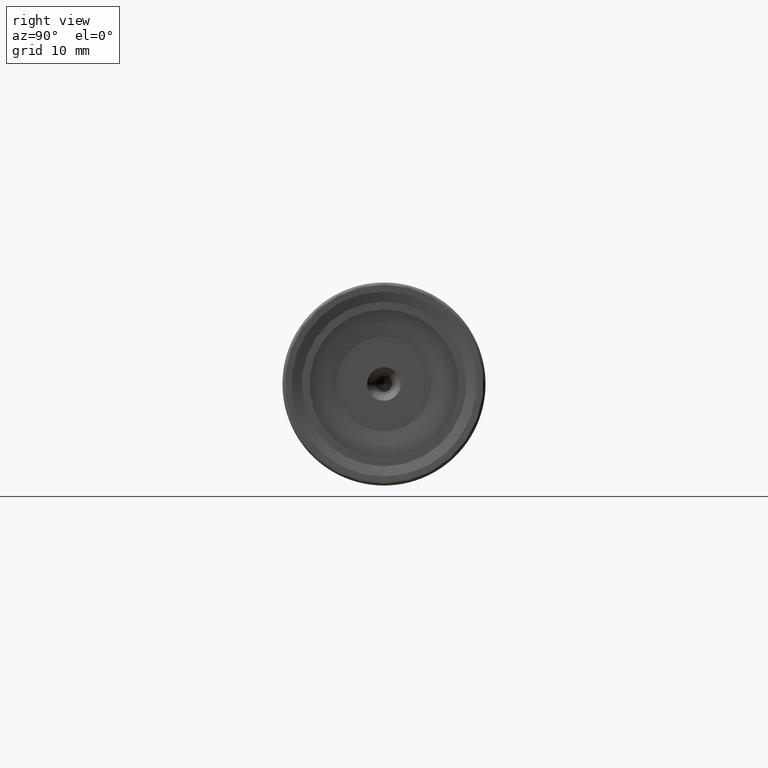
[diagram: clean part render]
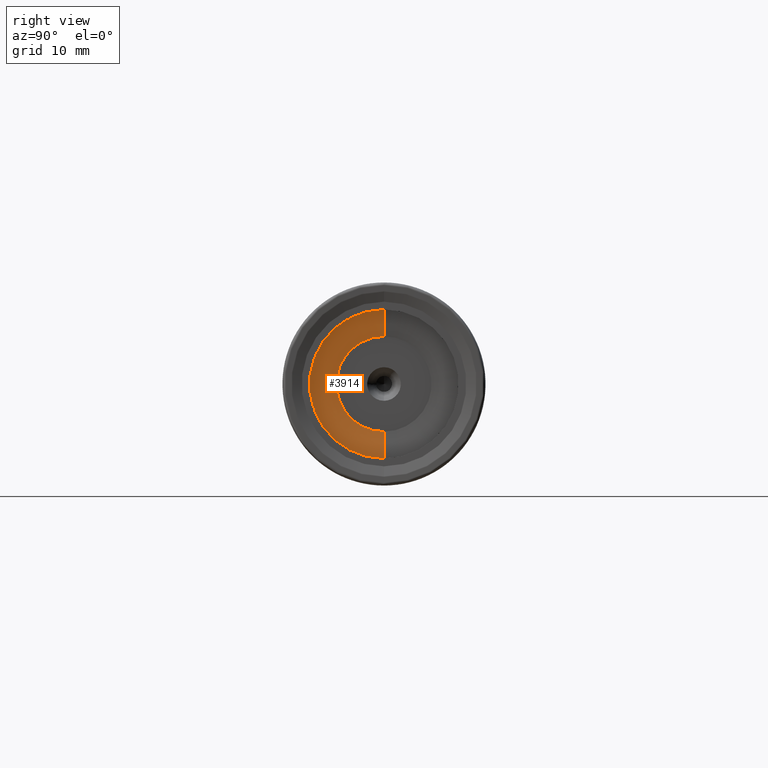
[diagram: same view with one face highlighted and labeled with its STEP entity id]
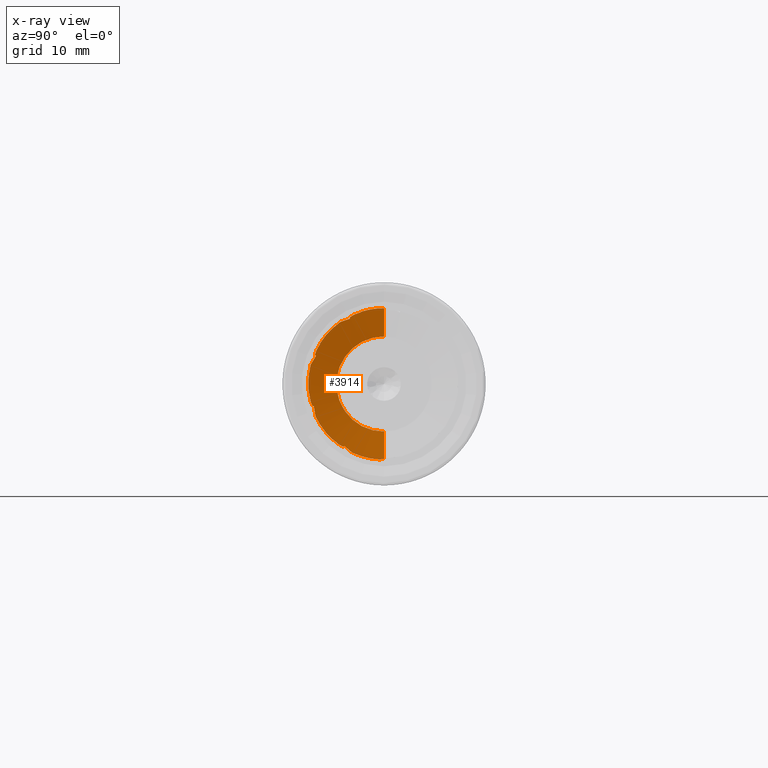
[diagram: x-ray of the same camera — body ghosted, the highlighted face saturated]
A machine part, right view. The second image highlights one B-rep face of the part: STEP entity #3914.
The next image is the same camera in x-ray: the body ghosted, the highlighted face saturated — about 0% of this face is hidden behind the body in this view.
In plain terms, the highlighted conical surface has half-angle 82.771 deg.
Its self-contained STEP definition (entity closure, byte-faithful):
#394 = ORIENTED_EDGE ( 'NONE', *, *, #3701, .F. ) ;
#396 = ORIENTED_EDGE ( 'NONE', *, *, #3816, .T. ) ;
#398 = ORIENTED_EDGE ( 'NONE', *, *, #4178, .T. ) ;
#400 = ORIENTED_EDGE ( 'NONE', *, *, #4321, .F. ) ;
#402 = ORIENTED_EDGE ( 'NONE', *, *, #4252, .F. ) ;
#404 = ORIENTED_EDGE ( 'NONE', *, *, #4466, .T. ) ;
#406 = ORIENTED_EDGE ( 'NONE', *, *, #3793, .F. ) ;
#408 = ORIENTED_EDGE ( 'NONE', *, *, #4454, .F. ) ;
#410 = ORIENTED_EDGE ( 'NONE', *, *, #4205, .T. ) ;
#412 = ORIENTED_EDGE ( 'NONE', *, *, #4451, .F. ) ;
#414 = ORIENTED_EDGE ( 'NONE', *, *, #4480, .F. ) ;
#416 = ORIENTED_EDGE ( 'NONE', *, *, #4285, .T. ) ;
#418 = ORIENTED_EDGE ( 'NONE', *, *, #4344, .F. ) ;
#420 = ORIENTED_EDGE ( 'NONE', *, *, #3808, .F. ) ;
#422 = ORIENTED_EDGE ( 'NONE', *, *, #4202, .T. ) ;
#424 = ORIENTED_EDGE ( 'NONE', *, *, #3801, .F. ) ;
#426 = ORIENTED_EDGE ( 'NONE', *, *, #3702, .F. ) ;
#428 = ORIENTED_EDGE ( 'NONE', *, *, #3831, .T. ) ;
#430 = ORIENTED_EDGE ( 'NONE', *, *, #4468, .F. ) ;
#432 = ORIENTED_EDGE ( 'NONE', *, *, #4476, .F. ) ;
#434 = ORIENTED_EDGE ( 'NONE', *, *, #4143, .T. ) ;
#436 = ORIENTED_EDGE ( 'NONE', *, *, #4333, .F. ) ;
#438 = ORIENTED_EDGE ( 'NONE', *, *, #4286, .F. ) ;
#440 = ORIENTED_EDGE ( 'NONE', *, *, #4446, .T. ) ;
#442 = ORIENTED_EDGE ( 'NONE', *, *, #4447, .F. ) ;
#444 = ORIENTED_EDGE ( 'NONE', *, *, #4266, .F. ) ;
#446 = ORIENTED_EDGE ( 'NONE', *, *, #4227, .T. ) ;
#448 = ORIENTED_EDGE ( 'NONE', *, *, #4370, .F. ) ;
#450 = ORIENTED_EDGE ( 'NONE', *, *, #4369, .F. ) ;
#452 = ORIENTED_EDGE ( 'NONE', *, *, #4378, .F. ) ;
#571 = VERTEX_POINT ( 'NONE', #2256 ) ;
#601 = VERTEX_POINT ( 'NONE', #2271 ) ;
#611 = VERTEX_POINT ( 'NONE', #2276 ) ;
#701 = VERTEX_POINT ( 'NONE', #2321 ) ;
#709 = VERTEX_POINT ( 'NONE', #2325 ) ;
#719 = VERTEX_POINT ( 'NONE', #2330 ) ;
#754 = CARTESIAN_POINT ( 'NONE',  ( -0.8408502897859919700, -11.80428433555182700, -1.567950288884417500 ) ) ;
#759 = CARTESIAN_POINT ( 'NONE',  ( -0.8386959843635084500, -11.82099465300887100, -1.571126688327905400 ) ) ;
#760 = CARTESIAN_POINT ( 'NONE',  ( -0.8365416649249308700, -11.83770496844240900, -1.574303088910470800 ) ) ;
#768 = CARTESIAN_POINT ( 'NONE',  ( -0.8365416649249314300, -11.54318553436696600, 3.060156344832777100 ) ) ;
#779 = CARTESIAN_POINT ( 'NONE',  ( -0.8556041347244167600, -11.26501394663457300, 3.523009539136814800 ) ) ;
#785 = CARTESIAN_POINT ( 'NONE',  ( -0.8702469324916530800, -10.98763141287724400, 3.986470073321628100 ) ) ;
#786 = CARTESIAN_POINT ( 'NONE',  ( -0.8800728087807242500, -10.71094405707705900, 4.450493909454381800 ) ) ;
#813 = LINE ( 'NONE', #814, #1303 ) ;
#814 = CARTESIAN_POINT ( 'NONE',  ( -1.399999999999999900, 9.184850993605147900E-016, 7.500000000000000000 ) ) ;
#815 = DIRECTION ( 'NONE',  ( 0.1258414835689837000, 1.214911300582200800E-016, 0.9920503621354902500 ) ) ;
#861 = CARTESIAN_POINT ( 'NONE',  ( -0.8424511453978544800, -11.57259129098971700, -2.752149540198184100 ) ) ;
#862 = CARTESIAN_POINT ( 'NONE',  ( -0.8477636352723098000, -11.46923423779513800, -3.005744197847271900 ) ) ;
#866 = CARTESIAN_POINT ( 'NONE',  ( -0.8519066745888120900, -11.36584842702142200, -3.259345244553054000 ) ) ;
#867 = CARTESIAN_POINT ( 'NONE',  ( -0.8548505829995852700, -11.26243312880877500, -3.512952842468108500 ) ) ;
#1167 = DIRECTION ( 'NONE',  ( 0.0000000000000000000, 0.0000000000000000000, -1.000000000000000000 ) ) ;
#1168 = CARTESIAN_POINT ( 'NONE',  ( -1.399999999999999900, 0.0000000000000000000, 0.0000000000000000000 ) ) ;
#1169 = FACE_OUTER_BOUND ( 'NONE', #2698, .T. ) ;
#1170 = DIRECTION ( 'NONE',  ( 1.000000000000000000, -0.0000000000000000000, -0.0000000000000000000 ) ) ;
#1274 = VERTEX_POINT ( 'NONE', #2351 ) ;
#1303 = VECTOR ( 'NONE', #815, 1000.000000000000100 ) ;
#1445 = CARTESIAN_POINT ( 'NONE',  ( -0.8365416649249314300, 0.0000000000000000000, 0.0000000000000000000 ) ) ;
#1446 = DIRECTION ( 'NONE',  ( 1.000000000000000000, -0.0000000000000000000, -0.0000000000000000000 ) ) ;
#1447 = DIRECTION ( 'NONE',  ( 0.0000000000000000000, 0.0000000000000000000, 1.000000000000000000 ) ) ;
#1647 = CARTESIAN_POINT ( 'NONE',  ( -0.8365416649249314300, 0.0000000000000000000, 0.0000000000000000000 ) ) ;
#1648 = DIRECTION ( 'NONE',  ( 1.000000000000000000, -0.0000000000000000000, -0.0000000000000000000 ) ) ;
#1649 = DIRECTION ( 'NONE',  ( 0.0000000000000000000, 0.0000000000000000000, 1.000000000000000000 ) ) ;
#1750 = CARTESIAN_POINT ( 'NONE',  ( -0.8365416649249314300, 0.0000000000000000000, 0.0000000000000000000 ) ) ;
#1751 = DIRECTION ( 'NONE',  ( 1.000000000000000000, -0.0000000000000000000, -0.0000000000000000000 ) ) ;
#1752 = DIRECTION ( 'NONE',  ( 0.0000000000000000000, 0.0000000000000000000, 1.000000000000000000 ) ) ;
#1765 = CARTESIAN_POINT ( 'NONE',  ( -0.8365416649249314300, 0.0000000000000000000, 0.0000000000000000000 ) ) ;
#1766 = DIRECTION ( 'NONE',  ( 1.000000000000000000, -0.0000000000000000000, -0.0000000000000000000 ) ) ;
#1767 = DIRECTION ( 'NONE',  ( 0.0000000000000000000, 0.0000000000000000000, 1.000000000000000000 ) ) ;
#1873 = CARTESIAN_POINT ( 'NONE',  ( -0.8365416649249314300, 0.0000000000000000000, 0.0000000000000000000 ) ) ;
#1874 = DIRECTION ( 'NONE',  ( 1.000000000000000000, -0.0000000000000000000, -0.0000000000000000000 ) ) ;
#1875 = DIRECTION ( 'NONE',  ( 0.0000000000000000000, 0.0000000000000000000, 1.000000000000000000 ) ) ;
#1963 = VERTEX_POINT ( 'NONE', #2359 ) ;
#1964 = VERTEX_POINT ( 'NONE', #2360 ) ;
#1967 = VERTEX_POINT ( 'NONE', #2363 ) ;
#1976 = CARTESIAN_POINT ( 'NONE',  ( -0.8477636356011210000, -4.951691828586384700, 10.77304878697902900 ) ) ;
#1977 = CARTESIAN_POINT ( 'NONE',  ( -0.8424511453978536000, -4.719897593200675700, 10.91887187348595100 ) ) ;
#1982 = CARTESIAN_POINT ( 'NONE',  ( -0.8519066747725505500, -5.183487348037292700, 10.62719627928330400 ) ) ;
#1983 = CARTESIAN_POINT ( 'NONE',  ( -0.8548505829995851600, -5.415284184142144900, 10.48131360370798900 ) ) ;
#1984 = CARTESIAN_POINT ( 'NONE',  ( -0.8716663574693769300, -11.13133219215556100, -3.488041535889471900 ) ) ;
#1985 = CARTESIAN_POINT ( 'NONE',  ( -0.8800728087807302400, -11.06578151746479800, -3.475585999462436100 ) ) ;
#1989 = CARTESIAN_POINT ( 'NONE',  ( -0.8632589327120321300, -11.19688272696080700, -3.500497151542556000 ) ) ;
#1990 = CARTESIAN_POINT ( 'NONE',  ( -0.8548505829995852700, -11.26243312880877500, -3.512952842468108500 ) ) ;
#2015 = CARTESIAN_POINT ( 'NONE',  ( -0.8556039821939199800, -10.89404754050852900, -4.542233775169762600 ) ) ;
#2016 = CARTESIAN_POINT ( 'NONE',  ( -0.8365416649249314300, -10.80962371663590800, -5.075600874810944200 ) ) ;
#2021 = CARTESIAN_POINT ( 'NONE',  ( -0.8702468518466736100, -10.97946684797748600, -4.008904461798660900 ) ) ;
#2022 = CARTESIAN_POINT ( 'NONE',  ( -0.8800728087807302400, -11.06578151746479800, -3.475585999462436100 ) ) ;
#2031 = CARTESIAN_POINT ( 'NONE',  ( -0.8452092490884226500, -10.43475509660756600, 5.679751512238759400 ) ) ;
#2032 = CARTESIAN_POINT ( 'NONE',  ( -0.8424511453978536000, -10.63416687539364600, 5.330449431913290700 ) ) ;
#2037 = CARTESIAN_POINT ( 'NONE',  ( -0.8453948181580719400, -10.23524046230496300, 6.029008448121373000 ) ) ;
#2038 = CARTESIAN_POINT ( 'NONE',  ( -0.8430045810115631700, -10.03562284168035700, 6.378220182149135600 ) ) ;
#2065 = CARTESIAN_POINT ( 'NONE',  ( -0.8424511453978536000, -4.719897593200675700, 10.91887187348595100 ) ) ;
#2081 = CARTESIAN_POINT ( 'NONE',  ( -0.8548505829995850500, -6.369441753771425000, -9.930430474033210300 ) ) ;
#2156 = AXIS2_PLACEMENT_3D ( 'NONE', #1168, #1170, #1167 ) ;
#2157 = CONICAL_SURFACE ( 'NONE', #2156, 7.500000000000000000, 1.444620314489962100 ) ;
#2256 = CARTESIAN_POINT ( 'NONE',  ( -0.8365416649249314300, -11.54318553436696600, 3.060156344832777100 ) ) ;
#2271 = CARTESIAN_POINT ( 'NONE',  ( -0.8365416649249322000, -0.5052100079786555600, -11.93123849327794500 ) ) ;
#2276 = CARTESIAN_POINT ( 'NONE',  ( -0.8365416649249314300, -6.875562552332457500, 9.764032400837406200 ) ) ;
#2321 = CARTESIAN_POINT ( 'NONE',  ( -0.8365416649249314300, -10.80962371663590800, -5.075600874810944200 ) ) ;
#2325 = CARTESIAN_POINT ( 'NONE',  ( -0.8365416649249314300, -5.018118826295346200, -10.83642803606517400 ) ) ;
#2330 = CARTESIAN_POINT ( 'NONE',  ( -0.8365416649249307600, -3.605981783078858500, 11.38448876830850800 ) ) ;
#2351 = CARTESIAN_POINT ( 'NONE',  ( -0.8430045810115628400, -8.023988304009794300, -8.775592869404617200 ) ) ;
#2359 = CARTESIAN_POINT ( 'NONE',  ( -0.8800728087807238000, -5.344336833499422600, 10.29413825640720100 ) ) ;
#2360 = CARTESIAN_POINT ( 'NONE',  ( -0.8548505829995852700, -11.26243312880877500, -3.512952842468108500 ) ) ;
#2363 = CARTESIAN_POINT ( 'NONE',  ( -0.8800728087807238000, -6.242816823368128700, -9.775400592395016000 ) ) ;
#2371 = CARTESIAN_POINT ( 'NONE',  ( -0.8365416649249306500, -8.056265590914314600, -8.815116213884488500 ) ) ;
#2380 = CARTESIAN_POINT ( 'NONE',  ( -0.8365416649249314300, 1.462464619686716000E-015, 11.94192987484180100 ) ) ;
#2391 = CARTESIAN_POINT ( 'NONE',  ( -0.8365416649249308700, -11.83770496844240900, -1.574303088910470800 ) ) ;
#2422 = CARTESIAN_POINT ( 'NONE',  ( -0.8365416649249310900, -10.08015062980011200, 6.403143947794673900 ) ) ;
#2447 = CARTESIAN_POINT ( 'NONE',  ( -0.8548505829995851600, -5.415284184142144900, 10.48131360370798900 ) ) ;
#2451 = CARTESIAN_POINT ( 'NONE',  ( -0.8424511453978536000, -10.63416687539364600, 5.330449431913290700 ) ) ;
#2455 = CARTESIAN_POINT ( 'NONE',  ( -0.8446540480794894100, -7.550806746178074500E-018, -11.87797725430670000 ) ) ;
#2468 = CARTESIAN_POINT ( 'NONE',  ( -0.8430045810115631700, -3.587892206169022800, 11.33677414564401800 ) ) ;
#2469 = CARTESIAN_POINT ( 'NONE',  ( -0.8800728087807242500, -10.71094405707705900, 4.450493909454381800 ) ) ;
#2471 = CARTESIAN_POINT ( 'NONE',  ( -1.399999999999999900, 1.190474859524439800E-015, 7.500000000000000000 ) ) ;
#2483 = CARTESIAN_POINT ( 'NONE',  ( -0.8800728087807302400, -11.06578151746479800, -3.475585999462436100 ) ) ;
#2496 = CARTESIAN_POINT ( 'NONE',  ( -0.8424511453978544800, -11.57259129098971700, -2.752149540198184100 ) ) ;
#2500 = VERTEX_POINT ( 'NONE', #2371 ) ;
#2512 = VERTEX_POINT ( 'NONE', #2380 ) ;
#2523 = VERTEX_POINT ( 'NONE', #2391 ) ;
#2554 = VERTEX_POINT ( 'NONE', #2422 ) ;
#2698 = EDGE_LOOP ( 'NONE', ( #394, #396, #398, #400, #402, #404, #406, #408, #410, #412, #414, #416, #418, #420, #422, #424, #426, #428, #430, #432, #434, #436, #438, #440, #442, #444, #446, #448, #450, #452 ) ) ;
#2863 = VERTEX_POINT ( 'NONE', #2447 ) ;
#2867 = VERTEX_POINT ( 'NONE', #2451 ) ;
#2871 = VERTEX_POINT ( 'NONE', #2455 ) ;
#2897 = VERTEX_POINT ( 'NONE', #2468 ) ;
#2898 = VERTEX_POINT ( 'NONE', #2469 ) ;
#2900 = VERTEX_POINT ( 'NONE', #2471 ) ;
#2950 = AXIS2_PLACEMENT_3D ( 'NONE', #6729, #6730, #6731 ) ;
#2966 = CIRCLE ( 'NONE', #2950, 7.500000000000000000 ) ;
#3022 = CARTESIAN_POINT ( 'NONE',  ( -0.8452092538668729600, -4.342611605246450100, 11.05827361197483300 ) ) ;
#3029 = CARTESIAN_POINT ( 'NONE',  ( -0.8424511453978536000, -4.719897593200675700, 10.91887187348595100 ) ) ;
#3033 = CARTESIAN_POINT ( 'NONE',  ( -0.8453948140152147700, -3.965276496888238400, 11.19757441179983100 ) ) ;
#3034 = CARTESIAN_POINT ( 'NONE',  ( -0.8430045810115631700, -3.587892206169022800, 11.33677414564401800 ) ) ;
#3078 = CARTESIAN_POINT ( 'NONE',  ( -0.8556041140388648300, -5.425635809082961300, -10.48210927055406700 ) ) ;
#3083 = CARTESIAN_POINT ( 'NONE',  ( -0.8365416649249314300, -5.018118826295346200, -10.83642803606517400 ) ) ;
#3087 = CARTESIAN_POINT ( 'NONE',  ( -0.8702469215442105700, -5.833888351475566800, -10.12846173244650800 ) ) ;
#3088 = CARTESIAN_POINT ( 'NONE',  ( -0.8800728087807238000, -6.242816823368128700, -9.775400592395016000 ) ) ;
#3183 = CARTESIAN_POINT ( 'NONE',  ( -0.8424511453978536000, -7.096071626505841200, -9.546987155715823900 ) ) ;
#3188 = CARTESIAN_POINT ( 'NONE',  ( -0.8424511453978536000, -10.63416687539364600, 5.330449431913290700 ) ) ;
#3189 = CARTESIAN_POINT ( 'NONE',  ( -0.8477636393760863400, -10.71799834771416500, 5.069747819063485000 ) ) ;
#3193 = CARTESIAN_POINT ( 'NONE',  ( -0.8452092509661990300, -7.405439741986480600, -9.289949045224581400 ) ) ;
#3194 = CARTESIAN_POINT ( 'NONE',  ( -0.8519066768819872900, -10.80181183301449500, 4.809023026556639400 ) ) ;
#3195 = CARTESIAN_POINT ( 'NONE',  ( -0.8548505829995851600, -10.88560687487465000, 4.548274466209791800 ) ) ;
#3198 = CARTESIAN_POINT ( 'NONE',  ( -0.8453948165300594300, -7.714745327576450200, -9.032817655869132900 ) ) ;
#3199 = CARTESIAN_POINT ( 'NONE',  ( -0.8430045810115628400, -8.023988304009794300, -8.775592869404617200 ) ) ;
#3384 = CARTESIAN_POINT ( 'NONE',  ( -0.8408502897859917400, -3.593922064361940300, 11.35267902207489500 ) ) ;
#3385 = CARTESIAN_POINT ( 'NONE',  ( -0.8430045810115631700, -3.587892206169022800, 11.33677414564401800 ) ) ;
#3392 = CARTESIAN_POINT ( 'NONE',  ( -0.8386959843635084500, -3.599951923335202000, 11.36858389628698300 ) ) ;
#3393 = CARTESIAN_POINT ( 'NONE',  ( -0.8365416649249307600, -3.605981783078858500, 11.38448876830850800 ) ) ;
#3433 = CARTESIAN_POINT ( 'NONE',  ( -0.8430045810115628400, -8.023988304009794300, -8.775592869404617200 ) ) ;
#3443 = CARTESIAN_POINT ( 'NONE',  ( -0.8408502897859916300, -8.034747401946527000, -8.788767317996336800 ) ) ;
#3457 = CARTESIAN_POINT ( 'NONE',  ( -0.8386959843635082300, -8.045506497571558700, -8.801941766154461900 ) ) ;
#3458 = CARTESIAN_POINT ( 'NONE',  ( -0.8365416649249306500, -8.056265590914314600, -8.815116213884488500 ) ) ;
#3508 = CARTESIAN_POINT ( 'NONE',  ( -0.8800728087807242500, -10.71094405707705900, 4.450493909454381800 ) ) ;
#3509 = CARTESIAN_POINT ( 'NONE',  ( -0.8716663574693763700, -10.76916505165391400, 4.483087576486203900 ) ) ;
#3522 = CARTESIAN_POINT ( 'NONE',  ( -0.8632589327120333600, -10.82738598999777000, 4.515681092910670100 ) ) ;
#3523 = CARTESIAN_POINT ( 'NONE',  ( -0.8548505829995851600, -10.88560687487465000, 4.548274466209791800 ) ) ;
#3547 = VERTEX_POINT ( 'NONE', #2483 ) ;
#3560 = VERTEX_POINT ( 'NONE', #2496 ) ;
#3566 = VERTEX_POINT ( 'NONE', #6657 ) ;
#3578 = VERTEX_POINT ( 'NONE', #6669 ) ;
#3583 = VERTEX_POINT ( 'NONE', #6674 ) ;
#3589 = B_SPLINE_CURVE_WITH_KNOTS ( 'NONE', 3,
 ( #5254, #5255, #5260, #5261 ),
 .UNSPECIFIED., .F., .F.,
 ( 4, 4 ),
 ( 0.0002574579374148931600, 0.0003088941823510664200 ),
 .UNSPECIFIED. ) ;
#3591 = B_SPLINE_CURVE_WITH_KNOTS ( 'NONE', 3,
 ( #3188, #3189, #3194, #3195 ),
 .UNSPECIFIED., .F., .F.,
 ( 4, 4 ),
 ( 0.0003105390936898961500, 0.001132228155330301700 ),
 .UNSPECIFIED. ) ;
#3596 = B_SPLINE_CURVE_WITH_KNOTS ( 'NONE', 3,
 ( #3385, #3384, #3392, #3393 ),
 .UNSPECIFIED., .F., .F.,
 ( 4, 4 ),
 ( 0.0004839834894248063000, 0.0005354197343606880100 ),
 .UNSPECIFIED. ) ;
#3605 = B_SPLINE_CURVE_WITH_KNOTS ( 'NONE', 3,
 ( #5249, #5250, #5256, #5257 ),
 .UNSPECIFIED., .F., .F.,
 ( 4, 4 ),
 ( 0.002094416310000768500, 0.002600298962219417400 ),
 .UNSPECIFIED. ) ;
#3608 = B_SPLINE_CURVE_WITH_KNOTS ( 'NONE', 3,
 ( #3183, #3193, #3198, #3199 ),
 .UNSPECIFIED., .F., .F.,
 ( 4, 4 ),
 ( 0.001102895927069756000, 0.002309567056425247100 ),
 .UNSPECIFIED. ) ;
#3618 = B_SPLINE_CURVE_WITH_KNOTS ( 'NONE', 3,
 ( #3508, #3509, #3522, #3523 ),
 .UNSPECIFIED., .F., .F.,
 ( 4, 4 ),
 ( 4.438866518376486300E-005, 0.0002461417267331955000 ),
 .UNSPECIFIED. ) ;
#3639 = B_SPLINE_CURVE_WITH_KNOTS ( 'NONE', 3,
 ( #3433, #3443, #3457, #3458 ),
 .UNSPECIFIED., .F., .F.,
 ( 4, 4 ),
 ( 0.0002829085229662050200, 0.0003343447679023791400 ),
 .UNSPECIFIED. ) ;
#3663 = VERTEX_POINT ( 'NONE', #6692 ) ;
#3689 = VERTEX_POINT ( 'NONE', #6718 ) ;
#3695 = VERTEX_POINT ( 'NONE', #6724 ) ;
#3701 = EDGE_CURVE ( 'NONE', #2900, #3578, #2966, .T. ) ;
#3702 = EDGE_CURVE ( 'NONE', #3560, #3583, #6970, .T. ) ;
#3793 = EDGE_CURVE ( 'NONE', #1963, #2863, #7020, .T. ) ;
#3801 = EDGE_CURVE ( 'NONE', #3583, #2523, #7009, .T. ) ;
#3808 = EDGE_CURVE ( 'NONE', #571, #2898, #7003, .T. ) ;
#3816 = EDGE_CURVE ( 'NONE', #2900, #2512, #813, .T. ) ;
#3831 = EDGE_CURVE ( 'NONE', #3560, #1964, #7011, .T. ) ;
#3914 = ADVANCED_FACE ( 'NONE', ( #1169 ), #2157, .F. ) ;
#4143 = EDGE_CURVE ( 'NONE', #701, #2500, #6403, .T. ) ;
#4178 = EDGE_CURVE ( 'NONE', #2512, #719, #6439, .T. ) ;
#4202 = EDGE_CURVE ( 'NONE', #571, #2523, #6471, .T. ) ;
#4205 = EDGE_CURVE ( 'NONE', #611, #2554, #6475, .T. ) ;
#4227 = EDGE_CURVE ( 'NONE', #709, #601, #6488, .T. ) ;
#4252 = EDGE_CURVE ( 'NONE', #6631, #2897, #6249, .T. ) ;
#4266 = EDGE_CURVE ( 'NONE', #709, #1967, #6245, .T. ) ;
#4285 = EDGE_CURVE ( 'NONE', #2867, #3695, #3591, .T. ) ;
#4286 = EDGE_CURVE ( 'NONE', #3663, #1274, #3608, .T. ) ;
#4321 = EDGE_CURVE ( 'NONE', #2897, #719, #3596, .T. ) ;
#4333 = EDGE_CURVE ( 'NONE', #1274, #2500, #3639, .T. ) ;
#4344 = EDGE_CURVE ( 'NONE', #2898, #3695, #3618, .T. ) ;
#4369 = EDGE_CURVE ( 'NONE', #2871, #3689, #3605, .T. ) ;
#4370 = EDGE_CURVE ( 'NONE', #3689, #601, #3589, .T. ) ;
#4378 = EDGE_CURVE ( 'NONE', #3578, #2871, #5295, .T. ) ;
#4446 = EDGE_CURVE ( 'NONE', #3663, #6648, #6222, .T. ) ;
#4447 = EDGE_CURVE ( 'NONE', #1967, #6648, #6213, .T. ) ;
#4451 = EDGE_CURVE ( 'NONE', #3566, #2554, #6212, .T. ) ;
#4454 = EDGE_CURVE ( 'NONE', #611, #1963, #6191, .T. ) ;
#4466 = EDGE_CURVE ( 'NONE', #6631, #2863, #6218, .T. ) ;
#4468 = EDGE_CURVE ( 'NONE', #3547, #1964, #6201, .T. ) ;
#4476 = EDGE_CURVE ( 'NONE', #701, #3547, #6190, .T. ) ;
#4480 = EDGE_CURVE ( 'NONE', #2867, #3566, #6214, .T. ) ;
#5249 = CARTESIAN_POINT ( 'NONE',  ( -0.8446540480794894100, -7.550806746178074500E-018, -11.87797725430670000 ) ) ;
#5250 = CARTESIAN_POINT ( 'NONE',  ( -0.8445569610360831300, -0.1686277479816483400, -11.87874262383221900 ) ) ;
#5254 = CARTESIAN_POINT ( 'NONE',  ( -0.8430045810115632800, -0.5058892878315268700, -11.88021441476913500 ) ) ;
#5255 = CARTESIAN_POINT ( 'NONE',  ( -0.8408502897859918600, -0.5056628626997238300, -11.89722244274911800 ) ) ;
#5256 = CARTESIAN_POINT ( 'NONE',  ( -0.8440066566378574600, -0.3372575127371991700, -11.87948832306502900 ) ) ;
#5257 = CARTESIAN_POINT ( 'NONE',  ( -0.8430045810115632800, -0.5058892878315268700, -11.88021441476913500 ) ) ;
#5260 = CARTESIAN_POINT ( 'NONE',  ( -0.8386959843635084500, -0.5054364360757649400, -11.91423046891101300 ) ) ;
#5261 = CARTESIAN_POINT ( 'NONE',  ( -0.8365416649249322000, -0.5052100079786555600, -11.93123849327794500 ) ) ;
#5295 = LINE ( 'NONE', #5296, #6609 ) ;
#5296 = CARTESIAN_POINT ( 'NONE',  ( -1.399999999999999900, 0.0000000000000000000, -7.500000000000000000 ) ) ;
#5297 = DIRECTION ( 'NONE',  ( 0.1258414835689837000, 0.0000000000000000000, -0.9920503621354902500 ) ) ;
#5507 = CARTESIAN_POINT ( 'NONE',  ( -0.8800728087807238000, -6.242816823368128700, -9.775400592395016000 ) ) ;
#5508 = CARTESIAN_POINT ( 'NONE',  ( -0.8716663574693759300, -6.285025288970389900, -9.827077248358829600 ) ) ;
#5521 = CARTESIAN_POINT ( 'NONE',  ( -0.8424511453978536000, -7.096071626505841200, -9.546987155715823900 ) ) ;
#5522 = CARTESIAN_POINT ( 'NONE',  ( -0.8477636375047225000, -6.853887924659124700, -9.674815354561285800 ) ) ;
#5526 = CARTESIAN_POINT ( 'NONE',  ( -0.8519066758362767700, -6.611678187316466700, -9.802629909415575300 ) ) ;
#5527 = CARTESIAN_POINT ( 'NONE',  ( -0.8548505829995850500, -6.369441753771425000, -9.930430474033210300 ) ) ;
#5530 = CARTESIAN_POINT ( 'NONE',  ( -0.8632589327120320200, -6.327233596488604000, -9.878753875096638400 ) ) ;
#5531 = CARTESIAN_POINT ( 'NONE',  ( -0.8548505829995850500, -6.369441753771425000, -9.930430474033210300 ) ) ;
#5539 = CARTESIAN_POINT ( 'NONE',  ( -0.8408502897859917400, -10.05046543854519900, 6.386528106222928400 ) ) ;
#5540 = CARTESIAN_POINT ( 'NONE',  ( -0.8430045810115631700, -10.03562284168035700, 6.378220182149135600 ) ) ;
#5545 = CARTESIAN_POINT ( 'NONE',  ( -0.8386959843635083400, -10.06530803458161000, 6.394836028095435900 ) ) ;
#5546 = CARTESIAN_POINT ( 'NONE',  ( -0.8365416649249310900, -10.08015062980011200, 6.403143947794673900 ) ) ;
#5551 = CARTESIAN_POINT ( 'NONE',  ( -0.8556040015175527800, -6.364958022997321100, 9.939792040152104500 ) ) ;
#5552 = CARTESIAN_POINT ( 'NONE',  ( -0.8365416649249314300, -6.875562552332457500, 9.764032400837406200 ) ) ;
#5557 = CARTESIAN_POINT ( 'NONE',  ( -0.8702468620309448100, -5.854564076136273200, 10.11652530568669300 ) ) ;
#5558 = CARTESIAN_POINT ( 'NONE',  ( -0.8800728087807238000, -5.344336833499422600, 10.29413825640720100 ) ) ;
#6190 = B_SPLINE_CURVE_WITH_KNOTS ( 'NONE', 3,
 ( #2016, #2015, #2021, #2022 ),
 .UNSPECIFIED., .F., .F.,
 ( 4, 4 ),
 ( 0.0009228030227792215800, 0.002543777770832868100 ),
 .UNSPECIFIED. ) ;
#6191 = B_SPLINE_CURVE_WITH_KNOTS ( 'NONE', 3,
 ( #5552, #5551, #5557, #5558 ),
 .UNSPECIFIED., .F., .F.,
 ( 4, 4 ),
 ( 0.0006319438393096284600, 0.002252918636128149700 ),
 .UNSPECIFIED. ) ;
#6201 = B_SPLINE_CURVE_WITH_KNOTS ( 'NONE', 3,
 ( #1985, #1984, #1989, #1990 ),
 .UNSPECIFIED., .F., .F.,
 ( 4, 4 ),
 ( 9.307633520910694700E-005, 0.0002948293967757285700 ),
 .UNSPECIFIED. ) ;
#6212 = B_SPLINE_CURVE_WITH_KNOTS ( 'NONE', 3,
 ( #5540, #5539, #5545, #5546 ),
 .UNSPECIFIED., .F., .F.,
 ( 4, 4 ),
 ( 0.0001076870314556728900, 0.0001591232763916339700 ),
 .UNSPECIFIED. ) ;
#6213 = B_SPLINE_CURVE_WITH_KNOTS ( 'NONE', 3,
 ( #5507, #5508, #5530, #5531 ),
 .UNSPECIFIED., .F., .F.,
 ( 4, 4 ),
 ( 1.270073100694613800E-006, 0.0002030231346330975400 ),
 .UNSPECIFIED. ) ;
#6214 = B_SPLINE_CURVE_WITH_KNOTS ( 'NONE', 3,
 ( #2032, #2031, #2037, #2038 ),
 .UNSPECIFIED., .F., .F.,
 ( 4, 4 ),
 ( 0.0009699000540451557100, 0.002176570660199608600 ),
 .UNSPECIFIED. ) ;
#6218 = B_SPLINE_CURVE_WITH_KNOTS ( 'NONE', 3,
 ( #1977, #1976, #1982, #1983 ),
 .UNSPECIFIED., .F., .F.,
 ( 4, 4 ),
 ( 0.0006461795420723746000, 0.001467868718426992600 ),
 .UNSPECIFIED. ) ;
#6222 = B_SPLINE_CURVE_WITH_KNOTS ( 'NONE', 3,
 ( #5521, #5522, #5526, #5527 ),
 .UNSPECIFIED., .F., .F.,
 ( 4, 4 ),
 ( 0.0004749202207252040000, 0.001296609342028186800 ),
 .UNSPECIFIED. ) ;
#6245 = B_SPLINE_CURVE_WITH_KNOTS ( 'NONE', 3,
 ( #3083, #3078, #3087, #3088 ),
 .UNSPECIFIED., .F., .F.,
 ( 4, 4 ),
 ( 0.0003976735829732897900, 0.002018648194595046300 ),
 .UNSPECIFIED. ) ;
#6249 = B_SPLINE_CURVE_WITH_KNOTS ( 'NONE', 3,
 ( #3029, #3022, #3033, #3034 ),
 .UNSPECIFIED., .F., .F.,
 ( 4, 4 ),
 ( 0.001305212302306147800, 0.002511884213069627700 ),
 .UNSPECIFIED. ) ;
#6403 = CIRCLE ( 'NONE', #6406, 11.94192987484180100 ) ;
#6406 = AXIS2_PLACEMENT_3D ( 'NONE', #1445, #1446, #1447 ) ;
#6439 = CIRCLE ( 'NONE', #6443, 11.94192987484180100 ) ;
#6443 = AXIS2_PLACEMENT_3D ( 'NONE', #1647, #1648, #1649 ) ;
#6471 = CIRCLE ( 'NONE', #6472, 11.94192987484180100 ) ;
#6472 = AXIS2_PLACEMENT_3D ( 'NONE', #1750, #1751, #1752 ) ;
#6475 = CIRCLE ( 'NONE', #6476, 11.94192987484180100 ) ;
#6476 = AXIS2_PLACEMENT_3D ( 'NONE', #1765, #1766, #1767 ) ;
#6488 = CIRCLE ( 'NONE', #6491, 11.94192987484180100 ) ;
#6491 = AXIS2_PLACEMENT_3D ( 'NONE', #1873, #1874, #1875 ) ;
#6609 = VECTOR ( 'NONE', #5297, 1000.000000000000100 ) ;
#6631 = VERTEX_POINT ( 'NONE', #2065 ) ;
#6648 = VERTEX_POINT ( 'NONE', #2081 ) ;
#6657 = CARTESIAN_POINT ( 'NONE',  ( -0.8430045810115631700, -10.03562284168035700, 6.378220182149135600 ) ) ;
#6669 = CARTESIAN_POINT ( 'NONE',  ( -1.399999999999999900, 0.0000000000000000000, -7.500000000000000000 ) ) ;
#6674 = CARTESIAN_POINT ( 'NONE',  ( -0.8430045810115631700, -11.78757401604520900, -1.564773890594709700 ) ) ;
#6692 = CARTESIAN_POINT ( 'NONE',  ( -0.8424511453978536000, -7.096071626505841200, -9.546987155715823900 ) ) ;
#6718 = CARTESIAN_POINT ( 'NONE',  ( -0.8430045810115632800, -0.5058892878315268700, -11.88021441476913500 ) ) ;
#6724 = CARTESIAN_POINT ( 'NONE',  ( -0.8548505829995851600, -10.88560687487465000, 4.548274466209791800 ) ) ;
#6727 = CARTESIAN_POINT ( 'NONE',  ( -0.8452092545289059400, -11.64436019679622100, -2.356388421310704900 ) ) ;
#6728 = CARTESIAN_POINT ( 'NONE',  ( -0.8424511453978544800, -11.57259129098971700, -2.752149540198184100 ) ) ;
#6729 = CARTESIAN_POINT ( 'NONE',  ( -1.399999999999999900, 0.0000000000000000000, 0.0000000000000000000 ) ) ;
#6730 = DIRECTION ( 'NONE',  ( 1.000000000000000000, -0.0000000000000000000, -0.0000000000000000000 ) ) ;
#6731 = DIRECTION ( 'NONE',  ( 0.0000000000000000000, 0.0000000000000000000, -1.000000000000000000 ) ) ;
#6733 = CARTESIAN_POINT ( 'NONE',  ( -0.8453948134412429000, -11.71602115048388600, -1.960596551023978900 ) ) ;
#6734 = CARTESIAN_POINT ( 'NONE',  ( -0.8430045810115631700, -11.78757401604520900, -1.564773890594709700 ) ) ;
#6970 = B_SPLINE_CURVE_WITH_KNOTS ( 'NONE', 3,
 ( #6728, #6727, #6733, #6734 ),
 .UNSPECIFIED., .F., .F.,
 ( 4, 4 ),
 ( 0.001350834756024165800, 0.002557506840571011400 ),
 .UNSPECIFIED. ) ;
#7003 = B_SPLINE_CURVE_WITH_KNOTS ( 'NONE', 3,
 ( #768, #779, #785, #786 ),
 .UNSPECIFIED., .F., .F.,
 ( 4, 4 ),
 ( 0.0004130848226880469000, 0.002034059316860369100 ),
 .UNSPECIFIED. ) ;
#7009 = B_SPLINE_CURVE_WITH_KNOTS ( 'NONE', 3,
 ( #7297, #754, #759, #760 ),
 .UNSPECIFIED., .F., .F.,
 ( 4, 4 ),
 ( 0.0003669213472908585400, 0.0004183575922269852900 ),
 .UNSPECIFIED. ) ;
#7011 = B_SPLINE_CURVE_WITH_KNOTS ( 'NONE', 3,
 ( #861, #862, #866, #867 ),
 .UNSPECIFIED., .F., .F.,
 ( 4, 4 ),
 ( 0.0006761790301036203900, 0.001497868215391380800 ),
 .UNSPECIFIED. ) ;
#7020 = B_SPLINE_CURVE_WITH_KNOTS ( 'NONE', 3,
 ( #7253, #7257, #7262, #7263 ),
 .UNSPECIFIED., .F., .F.,
 ( 4, 4 ),
 ( 5.920457586394632200E-005, 0.0002609576374188338900 ),
 .UNSPECIFIED. ) ;
#7253 = CARTESIAN_POINT ( 'NONE',  ( -0.8800728087807238000, -5.344336833499422600, 10.29413825640720100 ) ) ;
#7257 = CARTESIAN_POINT ( 'NONE',  ( -0.8716663574693761500, -5.367985897545583600, 10.35653018785542700 ) ) ;
#7262 = CARTESIAN_POINT ( 'NONE',  ( -0.8632589327120339100, -5.391635015323303500, 10.41892196778584900 ) ) ;
#7263 = CARTESIAN_POINT ( 'NONE',  ( -0.8548505829995851600, -5.415284184142144900, 10.48131360370798900 ) ) ;
#7297 = CARTESIAN_POINT ( 'NONE',  ( -0.8430045810115631700, -11.78757401604520900, -1.564773890594709700 ) ) ;